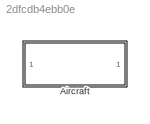
MODEL slx_2dfcdb4ebb0e
KIND model
CONFIG AbsTol = auto
CONFIG FixedStep = auto
CONFIG MaxStep = auto
CONFIG MinStep = auto
CONFIG RelTol = 1e-3
CONFIG SampleTimeConstraint = Unconstrained
CONFIG Solver = ode45
CONFIG SolverMode = Auto
CONFIG SolverName = ode45
CONFIG StartTime = 0.0
CONFIG StopTime = inf
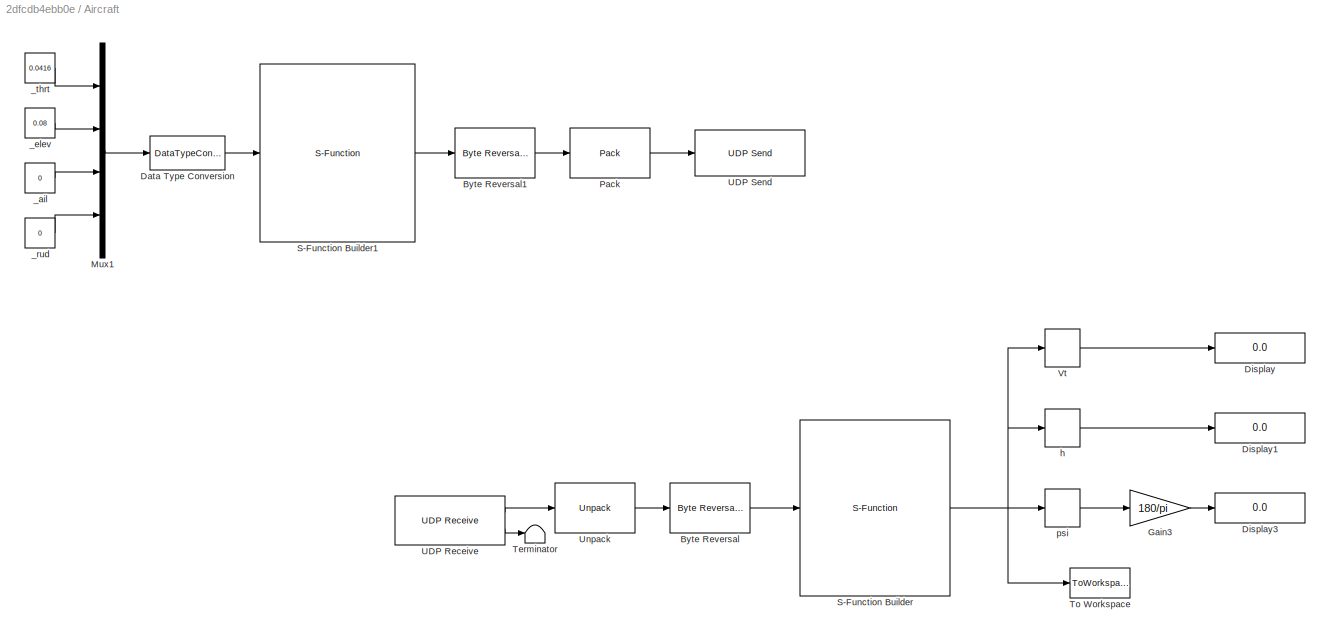
BLOCK [SubSystem] Aircraft
  Ports = []
  RequestExecContextInheritance = off
  Variant = off
BLOCK [Reference] Aircraft/Byte Reversal  REF=xpcutilitieslib/Byte Reversal 
  Ports = [1, 1]
  SourceBlock = xpcutilitieslib/Byte Reversal
  SourceType = xpcreverseendian
BLOCK [Reference] Aircraft/Byte Reversal1  REF=xpcutilitieslib/Byte Reversal 
  Ports = [1, 1]
  SourceBlock = xpcutilitieslib/Byte Reversal
  SourceType = xpcreverseendian
BLOCK [DataTypeConversion] Aircraft/Data Type Conversion
  OutDataTypeStr = single
  RndMeth = Floor
  SaturateOnIntegerOverflow = off
BLOCK [Display] Aircraft/Display
  Decimation = 1
  Ports = [1]
BLOCK [Display] Aircraft/Display1
  Decimation = 1
  Ports = [1]
BLOCK [Display] Aircraft/Display3
  Decimation = 1
  Ports = [1]
BLOCK [Gain] Aircraft/Gain3
  Gain = 180/pi
  OutDataTypeStr = Inherit: Inherit via internal rule
  ParamDataTypeStr = Inherit: Inherit via internal rule
  SaturateOnIntegerOverflow = off
BLOCK [Mux] Aircraft/Mux1
  DisplayOption = bar
  Ports = [4, 1]
BLOCK [Reference] Aircraft/Pack  REF=xpcobsoletelib/Utilities/Pack 
  Ports = [1, 1]
  SourceBlock = xpcobsoletelib/Utilities/Pack
  SourceType = xpcany2byte
BLOCK [S-Function] Aircraft/S-Function Builder
  CopyFcn = set_param(gcbh,'LinkStatus','none')
  EnableBusSupport = off
  FunctionName = dados_xplane
  InitFcn = try, set_param(gcb,'FunctionName','dados_xplane'), end
  OpenFcn = sfunctionwizard(gcbh)
  Ports = [1, 1]
  PreSaveFcn = try, set_param(gcb,'FunctionName','dados_xplane'), end
  SFunctionDeploymentMode = off
  SFunctionModules = dados_xplane_wrapper
BLOCK [S-Function] Aircraft/S-Function Builder1
  CopyFcn = set_param(gcbh,'LinkStatus','none')
  EnableBusSupport = off
  FunctionName = dados_matlab
  InitFcn = try, set_param(gcb,'FunctionName','dados_matlab'), end
  OpenFcn = sfunctionwizard(gcbh)
  Ports = [1, 1]
  PreSaveFcn = try, set_param(gcb,'FunctionName','dados_matlab'), end
  SFunctionDeploymentMode = off
  SFunctionModules = dados_matlab_wrapper crc
BLOCK [Terminator] Aircraft/Terminator
BLOCK [ToWorkspace] Aircraft/To Workspace
  FixptAsFi = on
  MaxDataPoints = inf
  Ports = [1]
  SampleTime = -1
  Save2DSignal = 3-D array (concatenate along third dimension)
  SaveFormat = Timeseries
  VariableName = y
BLOCK [Reference] Aircraft/UDP Receive  REF=instrumentlib/UDP Receive
  Ports = [0, 2]
  SourceBlock = instrumentlib/UDP Receive
  SourceType = UDP Receive
BLOCK [Reference] Aircraft/UDP Send  REF=instrumentlib/UDP Send
  Ports = [1]
  SourceBlock = instrumentlib/UDP Send
  SourceType = UDP Send
BLOCK [Reference] Aircraft/Unpack  REF=xpcobsoletelib/Utilities/Unpack 
  Ports = [1, 1]
  SourceBlock = xpcobsoletelib/Utilities/Unpack
  SourceType = xpcbyte2any
BLOCK [Selector] Aircraft/Vt
  IndexOptions = Index vector (dialog)
  Indices = [1]
  InputPortWidth = 12
  OutputSizes = 1
  Ports = [1, 1]
BLOCK [Constant] Aircraft/_ail
  Value = 0
BLOCK [Constant] Aircraft/_elev
  Value = 0.08
BLOCK [Constant] Aircraft/_rud
  Value = 0
BLOCK [Constant] Aircraft/_thrt
  Value = 0.0416
BLOCK [Selector] Aircraft/h
  IndexOptions = Index vector (dialog)
  Indices = [12]
  InputPortWidth = 12
  OutputSizes = 1
  Ports = [1, 1]
BLOCK [Selector] Aircraft/psi
  IndexOptions = Index vector (dialog)
  Indices = [9]
  InputPortWidth = 12
  OutputSizes = 1
  Ports = [1, 1]
LINE Aircraft/Byte Reversal1:1 -> Aircraft/Pack:1
LINE Aircraft/Byte Reversal:1 -> Aircraft/S-Function Builder:1
LINE Aircraft/Data Type Conversion:1 -> Aircraft/S-Function Builder1:1
LINE Aircraft/Gain3:1 -> Aircraft/Display3:1
LINE Aircraft/Mux1:1 -> Aircraft/Data Type Conversion:1
LINE Aircraft/Pack:1 -> Aircraft/UDP Send:1
LINE Aircraft/S-Function Builder1:1 -> Aircraft/Byte Reversal1:1
NET Aircraft/S-Function Builder:1 -> Aircraft/To Workspace:1, Aircraft/Vt:1, Aircraft/h:1, Aircraft/psi:1
LINE Aircraft/UDP Receive:1 -> Aircraft/Unpack:1
LINE Aircraft/UDP Receive:2 -> Aircraft/Terminator:1
LINE Aircraft/Unpack:1 -> Aircraft/Byte Reversal:1
LINE Aircraft/Vt:1 -> Aircraft/Display:1
LINE Aircraft/_ail:1 -> Aircraft/Mux1:3
LINE Aircraft/_elev:1 -> Aircraft/Mux1:2
LINE Aircraft/_rud:1 -> Aircraft/Mux1:4
LINE Aircraft/_thrt:1 -> Aircraft/Mux1:1
LINE Aircraft/h:1 -> Aircraft/Display1:1
LINE Aircraft/psi:1 -> Aircraft/Gain3:1
note: NET lines group one-source signal fan-out (src -> all destinations, sorted); 1:1 wires keep LINE
